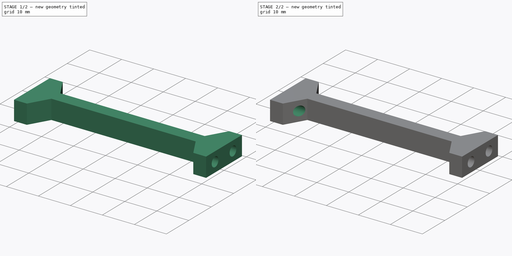
[diagram: build sequence overview — one tinted view per stage of 2, left to right]
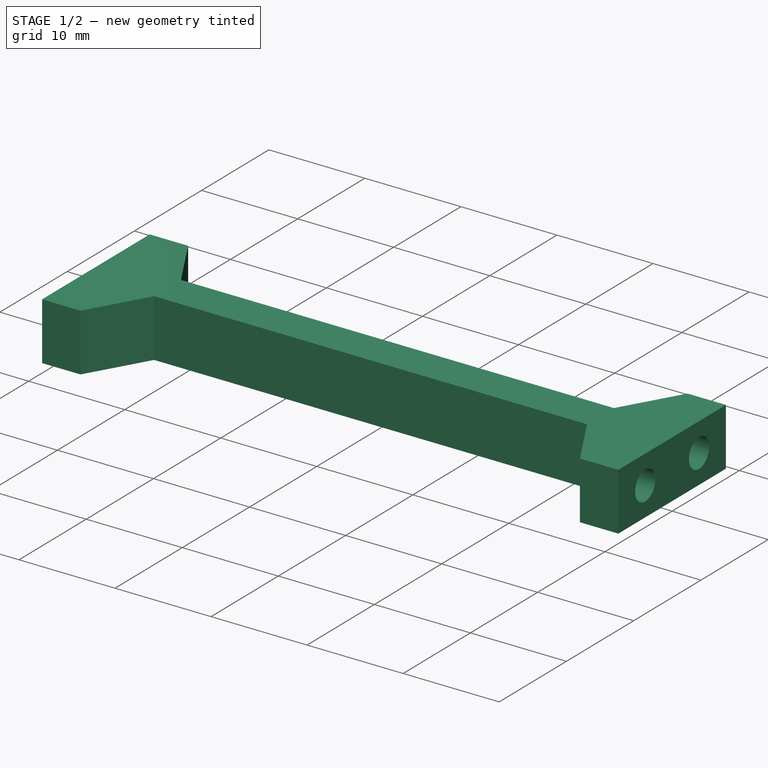
[diagram: stage 1 of 2 — iso view after this stage's code; geometry added in this stage tinted green]
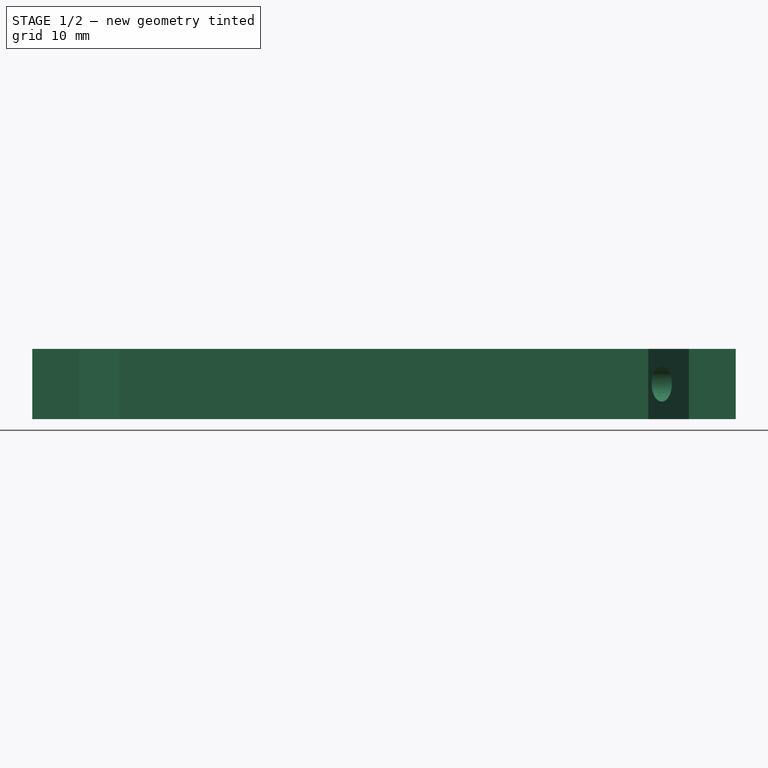
[diagram: stage 1 of 2 — front view after this stage's code; geometry added in this stage tinted green]
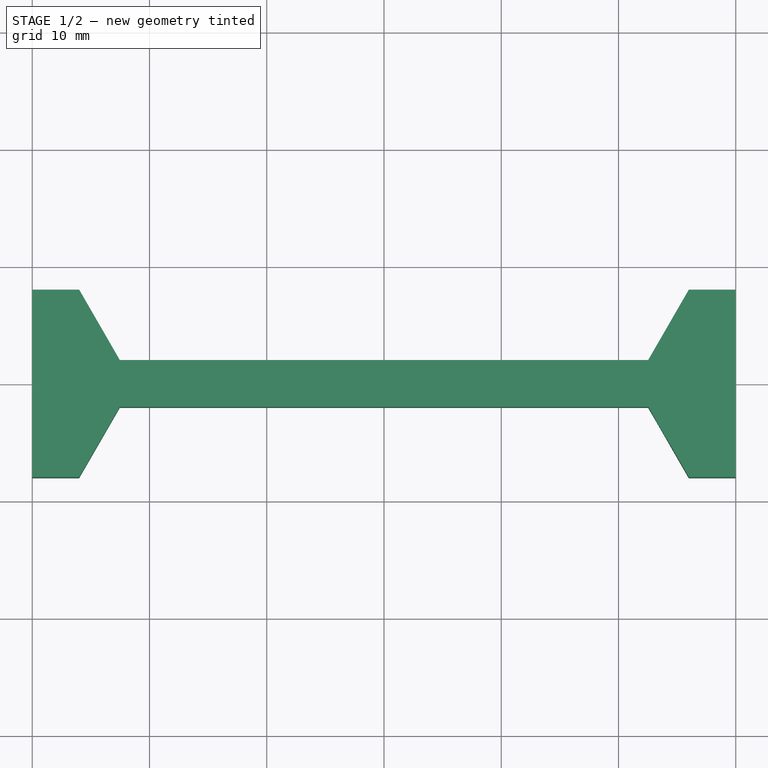
[diagram: stage 1 of 2 — top view after this stage's code; geometry added in this stage tinted green]
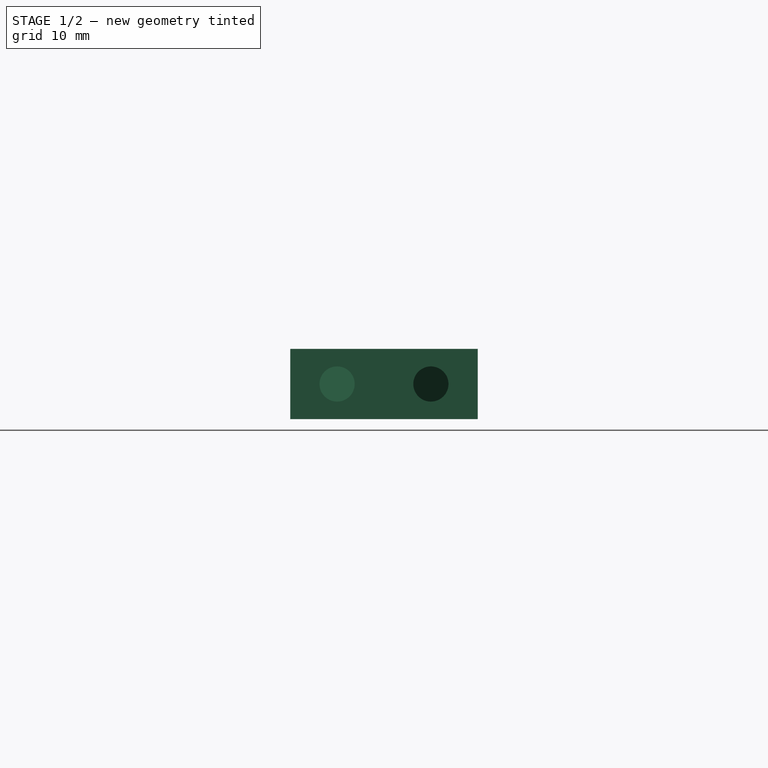
[diagram: stage 1 of 2 — right view after this stage's code; geometry added in this stage tinted green]
FCSTD DOCUMENT  (FreeCAD 1.0R39285 (Git))
Label: CrossMember
License: All rights reserved
LicenseURL: https://en.wikipedia.org/wiki/All_rights_reserved
objects: Sketcher::SketchObject×2, App::Link×1, PartDesign::Pad×1, PartDesign::Pocket×1, PartDesign::Mirrored×1, PartDesign::Body×1
note: 13 computed .brp shape members not serialized (recipe doc carries the construction recipe); baked Part::Feature solids carry a one-line shape summary decoded from their .brp
EXTERNAL_REF file=../../Dimentions.FCStd obj=dd005

FEATURE [Sketcher::SketchObject] Sketch
  ArcFitTolerance = 1e-06
  AttachmentSupport = -> [XY_Plane]
  FullyConstrained = true
  MakeInternals = false
  MapMode = 5
  expr: Constraints[25] = <<Frame>>.CrossMemberWidth
  sketch-geometry (13):
    g0: LineSegment StartX=-30 StartY=8 StartZ=0 EndX=-30 EndY=-8 EndZ=0
    g1: LineSegment StartX=-30 StartY=-8 StartZ=0 EndX=-26 EndY=-8 EndZ=0
    g2: LineSegment StartX=-26 StartY=-8 StartZ=0 EndX=-22.5359 EndY=-2 EndZ=0
    g3: LineSegment StartX=-22.5359 StartY=-2 StartZ=0 EndX=22.5359 EndY=-2 EndZ=0
    g4: LineSegment StartX=22.5359 StartY=-2 StartZ=0 EndX=26 EndY=-8 EndZ=0
    g5: LineSegment StartX=26 StartY=-8 StartZ=0 EndX=30 EndY=-8 EndZ=0
    g6: LineSegment StartX=30 StartY=-8 StartZ=0 EndX=30 EndY=8 EndZ=0
    g7: LineSegment StartX=30 StartY=8 StartZ=0 EndX=26 EndY=8 EndZ=0
    g8: LineSegment StartX=26 StartY=8 StartZ=0 EndX=22.5359 EndY=2 EndZ=0
    g9: LineSegment StartX=22.5359 StartY=2 StartZ=0 EndX=-22.5359 EndY=2 EndZ=0
    g10: LineSegment StartX=-22.5359 StartY=2 StartZ=0 EndX=-26 EndY=8 EndZ=0
    g11: LineSegment StartX=-26 StartY=8 StartZ=0 EndX=-30 EndY=8 EndZ=0
    g12: LineSegment [constr] StartX=-22.5359 StartY=-2 StartZ=0 EndX=-22.5359 EndY=2 EndZ=0
  constraints (34):
    c: Coincident(g0,g1)
    c: Horizontal(g1)
    c: Coincident(g1,g2)
    c: Coincident(g2,g3)
    c: Coincident(g3,g4)
    c: Coincident(g4,g5)
    c: Horizontal(g5)
    c: Coincident(g5,g6)
    c: Vertical(g6)
    c: Coincident(g6,g7)
    c: Horizontal(g7)
    c: Coincident(g7,g8)
    c: Coincident(g8,g9)
    c: Horizontal(g9)
    c: Coincident(g9,g10)
    c: Coincident(g10,g11)
    c: Coincident(g11,g0)
    c: Horizontal(g11)
    c: Symmetric(g0,g0,g-1)
    c: Symmetric(g5,g0,g-2)
    c: Equal(g1,g5)
    c: Equal(g6,g0)
    c: Symmetric(g2,g3,g-2)
    c: Symmetric(g2,g9,g-1)
    c: Distance(g9,g2) = 4
    c: DistanceX(g0,g6) = 60
    c: Coincident(g12,g2)
    c: Coincident(g12,g9)
    c: Equal(g1,g11)
    c: Equal(g7,g5)
    c: Angle(g9,g10) = 2.0944
    c: DistanceY(g0,g0) = 16
    c: Equal(g9,g3)
    c: Equal(g12,g11)
FEATURE [App::Link] Link  label="Frame"
  LinkedObject = -> <external ../../Dimentions.FCStd>#dd005
FEATURE [PartDesign::Pad] Pad
  Direction = (0,0,1)
  Length = 6
  Length2 = 10
  Midplane = true
  Profile = -> Sketch
  ReferenceAxis = -> Sketch [N_Axis]
  Refine = true
  Suppressed = false
  Type = 0
  expr: Length = <<Frame>>.CrossMemberHeight
FEATURE [Sketcher::SketchObject] Sketch001
  ArcFitTolerance = 1e-06
  AttachmentSupport = -> [Pad]
  ExternalGeometry = -> [Pad]
  FullyConstrained = true
  MakeInternals = false
  MapMode = 5
  Placement = pos=(30,0,0) rot=(0.57735,0.57735,0.57735;2.0944rad)
  expr: Constraints[8] = <<Frame>>.Height
  sketch-geometry (4):
    g0: Circle [constr] CenterX=-4 CenterY=0 CenterZ=0 NormalX=0 NormalY=0 NormalZ=1 AngleXU=0 Radius=4
    g1: Circle [constr] CenterX=4 CenterY=0 CenterZ=0 NormalX=0 NormalY=0 NormalZ=1 AngleXU=0 Radius=4
    g2: Circle CenterX=-4 CenterY=0 CenterZ=0 NormalX=0 NormalY=0 NormalZ=1 AngleXU=0 Radius=1.5
    g3: Circle CenterX=4 CenterY=0 CenterZ=0 NormalX=0 NormalY=0 NormalZ=1 AngleXU=0 Radius=1.5
  constraints (9):
    c: PointOnObject(g0,g-1)
    c: Tangent(g0,g-3)
    c: Equal(g0,g1)
    c: Symmetric(g0,g1,g-2)
    c: Coincident(g2,g0)
    c: Diameter(g3) = 3
    c: Coincident(g3,g1)
    c: Equal(g2,g3)
    c: Diameter(g0) = 8
FEATURE [PartDesign::Pocket] Pocket
  BaseFeature = -> Pad
  Direction = (-1,0,0)
  Length = 10
  Length2 = 5
  Profile = -> Sketch001
  ReferenceAxis = -> Sketch001 [N_Axis]
  Refine = true
  Suppressed = false
  Type = 0
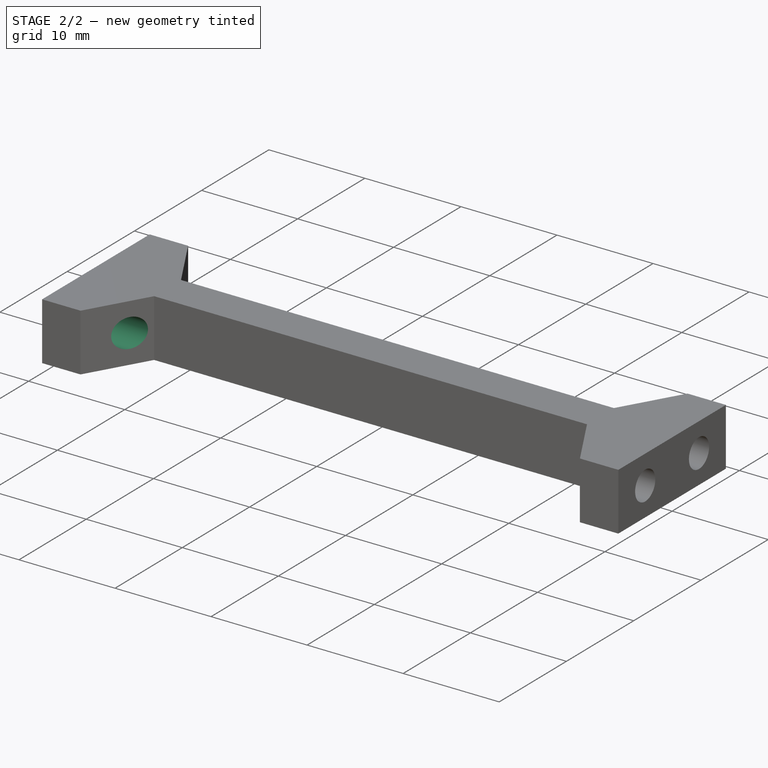
[diagram: stage 2 of 2 — iso view after this stage's code; geometry added in this stage tinted green]
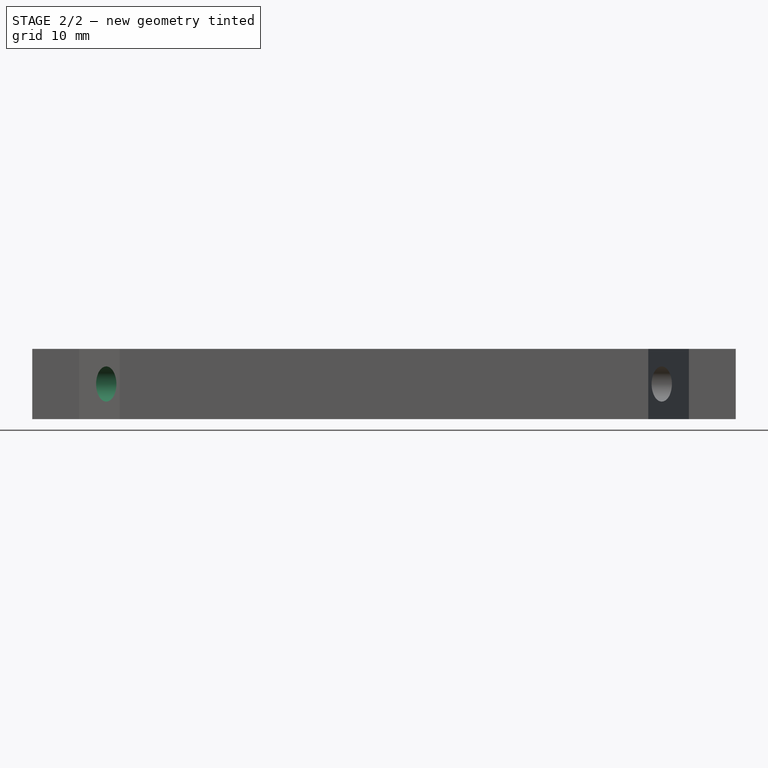
[diagram: stage 2 of 2 — front view after this stage's code; geometry added in this stage tinted green]
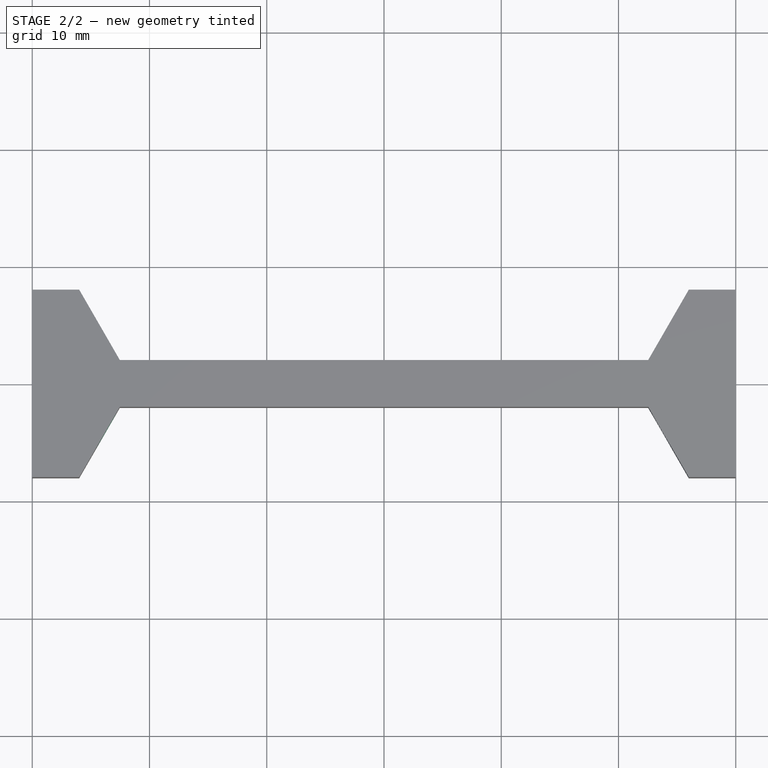
[diagram: stage 2 of 2 — top view after this stage's code; geometry added in this stage tinted green]
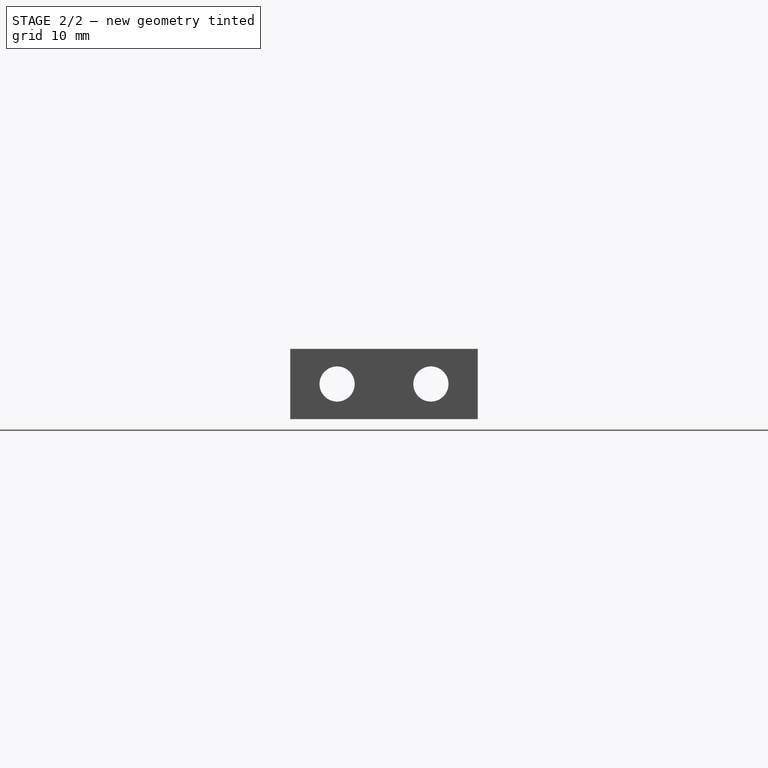
[diagram: stage 2 of 2 — right view after this stage's code; geometry added in this stage tinted green]
FEATURE [PartDesign::Mirrored] Mirrored
  BaseFeature = -> Pocket
  MirrorPlane = -> YZ_Plane
  Originals = -> [Pocket]
  Refine = true
  Suppressed = false
  TransformMode = 0
FEATURE [PartDesign::Body] Body
  AllowCompound = false
  Group = -> [Sketch,Pad,Sketch001,Pocket,Mirrored]
  Origin = -> Origin
  Tip = -> Mirrored
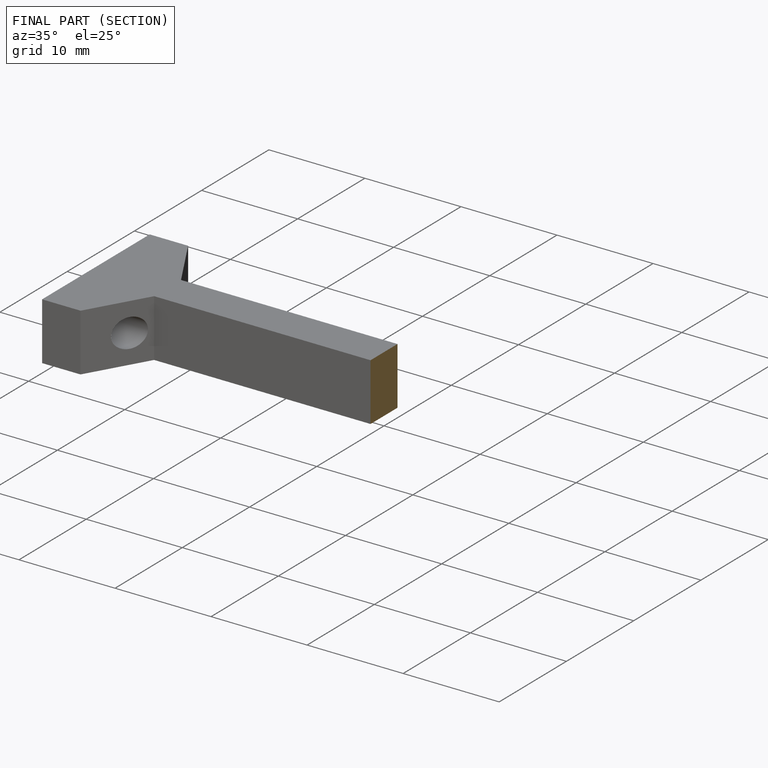
[diagram: finished part — half-section view (interior)]
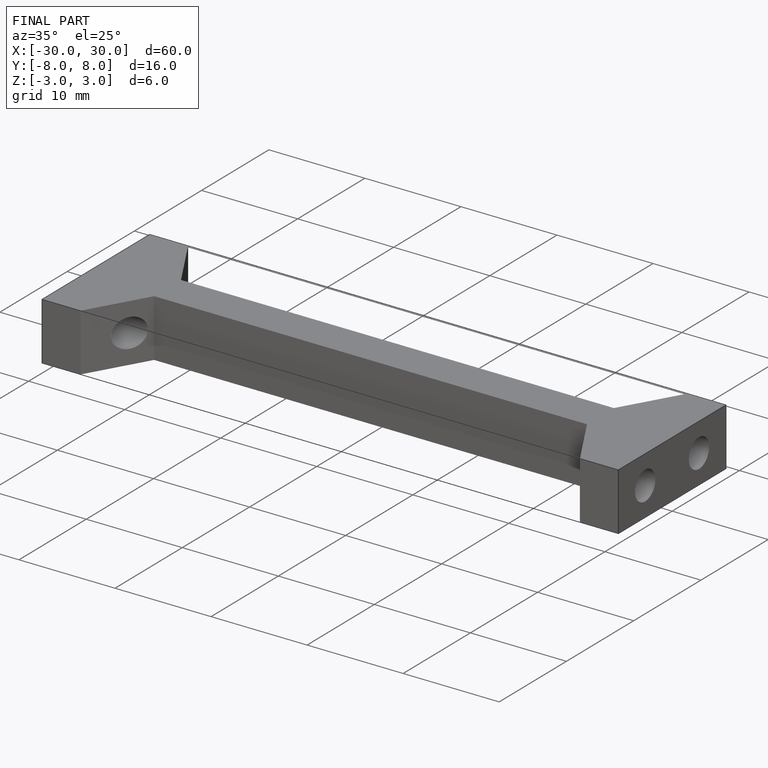
[diagram: finished part — iso view with bounding-box wireframe]
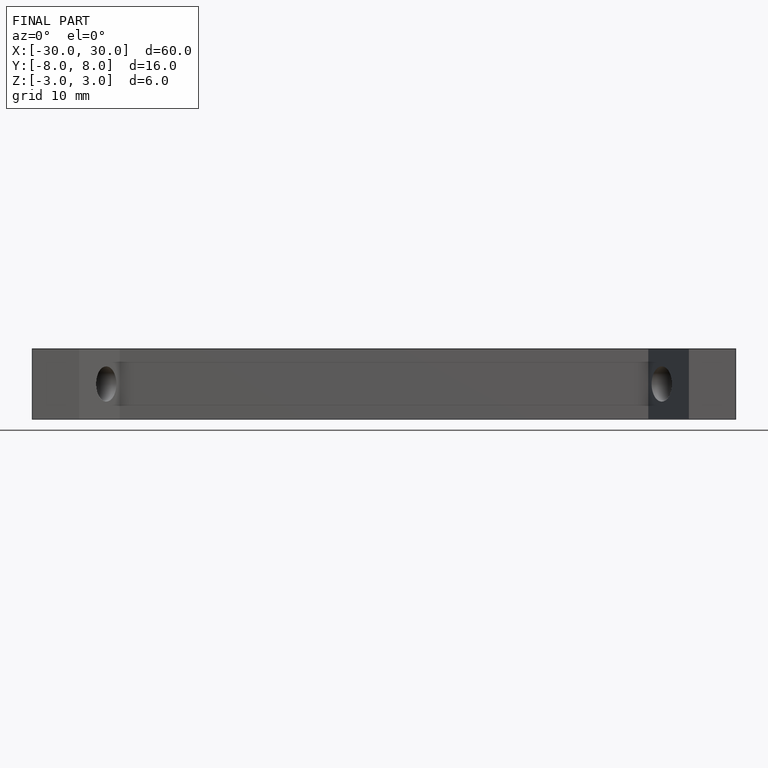
[diagram: finished part — front view with bounding-box wireframe]
